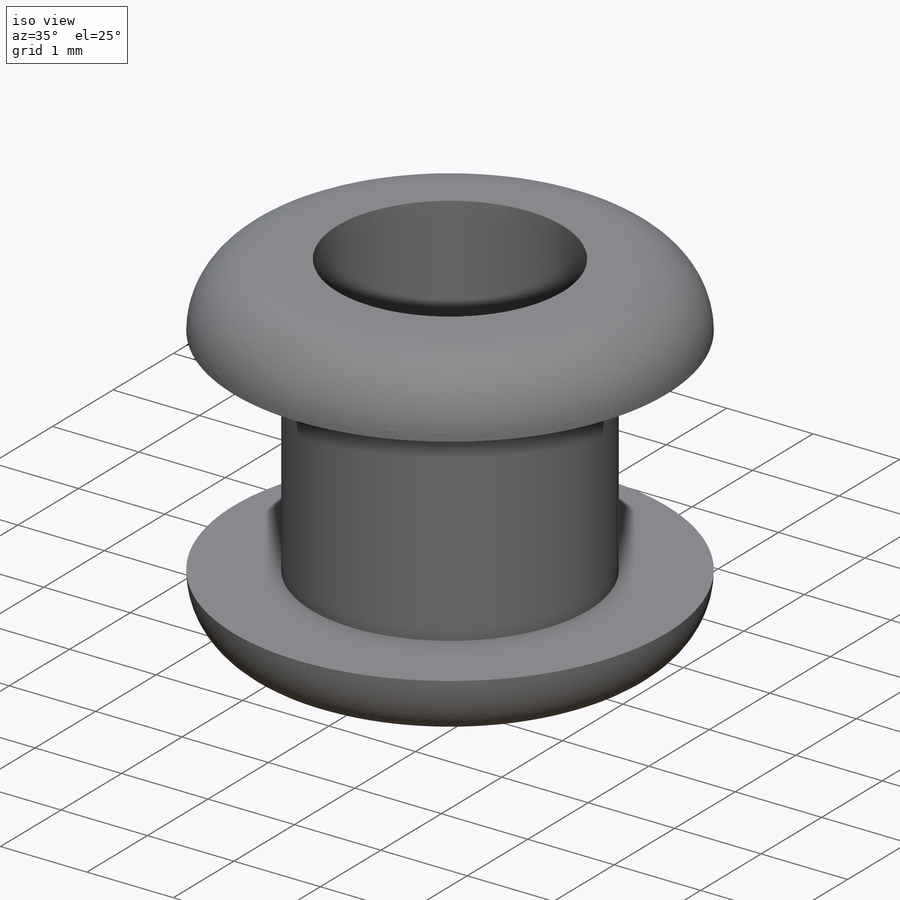
[diagram: iso view]
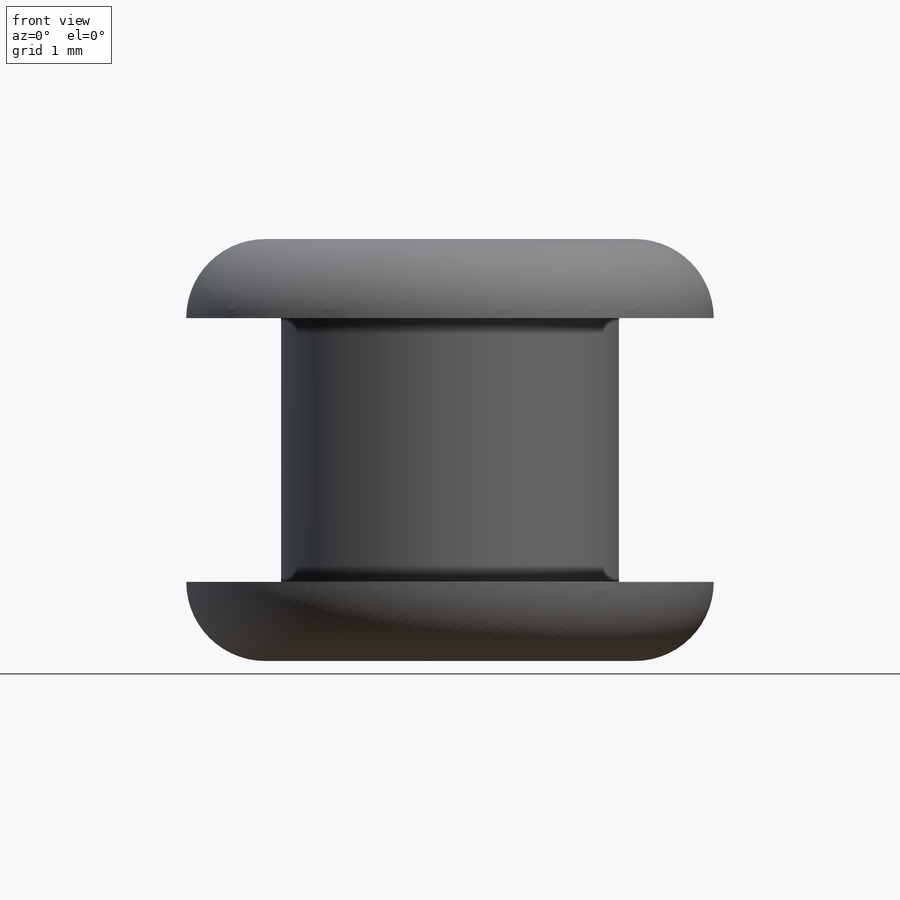
[diagram: front view]
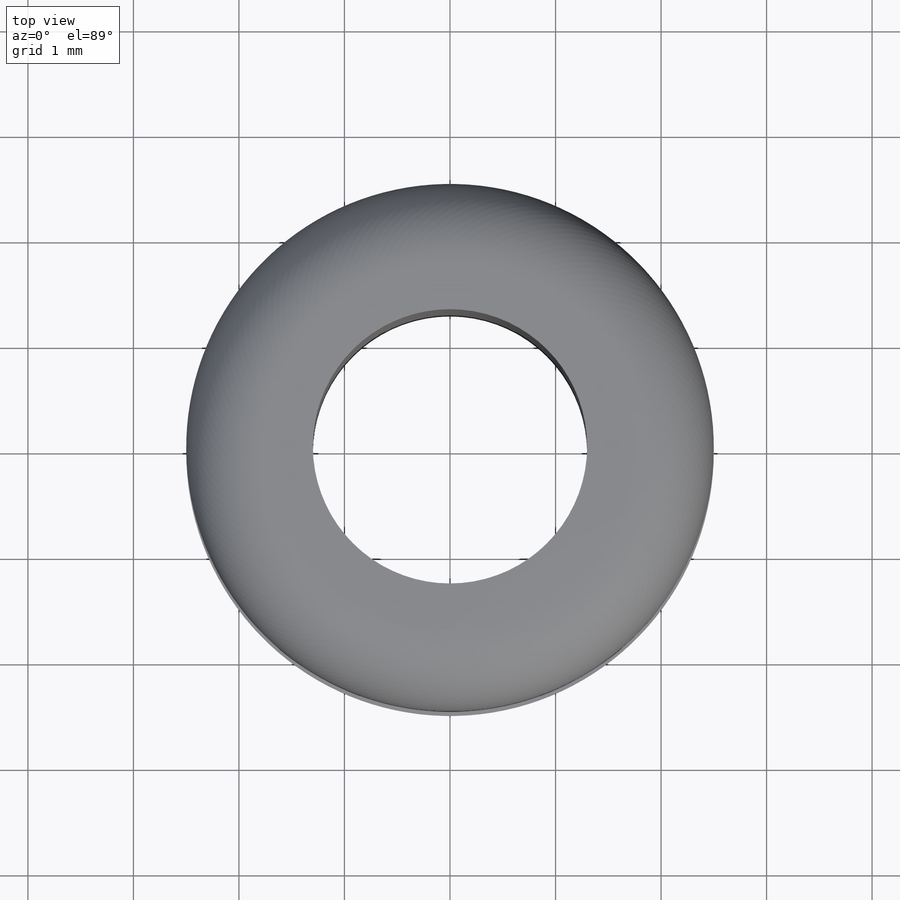
[diagram: top view]
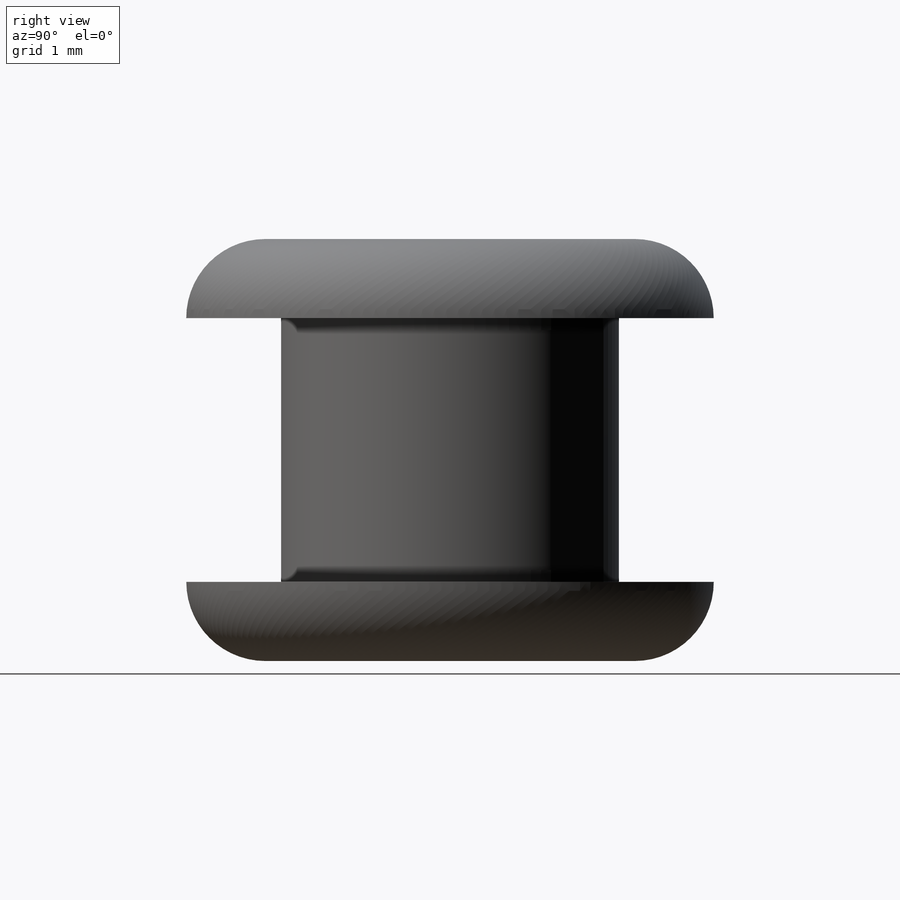
[diagram: right view]
SOLIDWORKS PART (.sldprt)
format: sldprt  version: not decoded by parser v0  size: 411,136 bytes
history: native  units: mm
features: sketch x4, extrude x3, material x1, cut_extrude x1, fillet x1 (+14 scaffold rows collapsed)
feature tree (24):
  scaffold x14  (default folders/planes/origin — collapsed)
  material  "Material <not specified>"
  sketch  "Sketch1"  dims[D1=~1.226422mm]
  extrude  "Extrude1"  Depth=2.5mm
  sketch  "Sketch2"  dims[D1=~3.584416mm]
  extrude  "Extrude2"  Depth=0.75mm
  sketch  "Sketch3"  dims[D1=~4.456725mm]
  extrude  "Extrude3"  Depth=0.75mm
  sketch  "Sketch4"  dims[D1=~1.764044mm]
  cut_extrude  "Cut-Extrude1"  [1 undecoded]
  fillet  "Fillet1"  Radius=0.75mm
decode coverage: 8 of 9 modeling features carry decoded parameters
note: ~ marks probable driven/reference dimensions
note: 1 parameter value undecoded
note: suppression state not decoded; provenance and decode notes live in map.json
